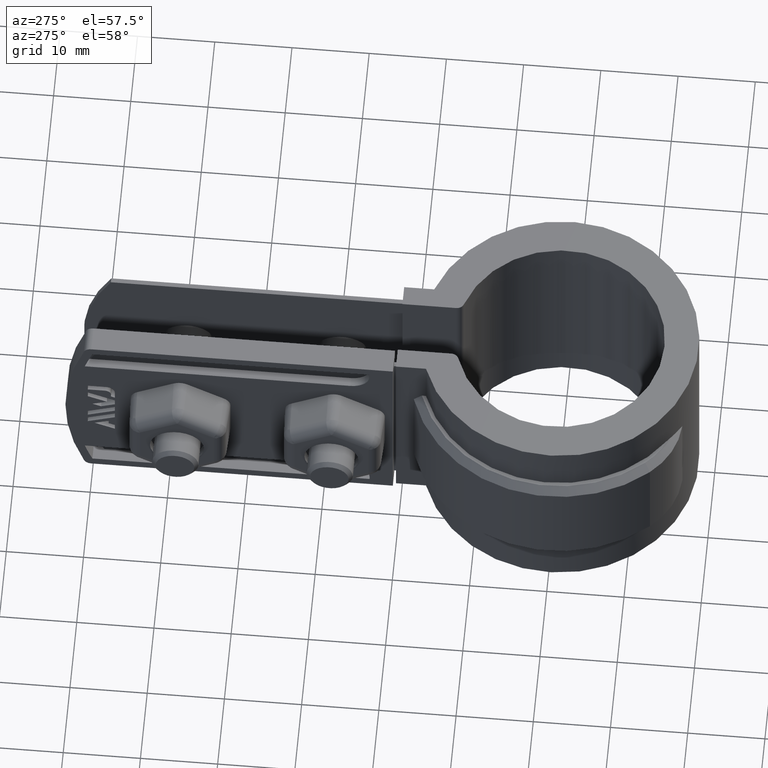
[diagram: clean part render]
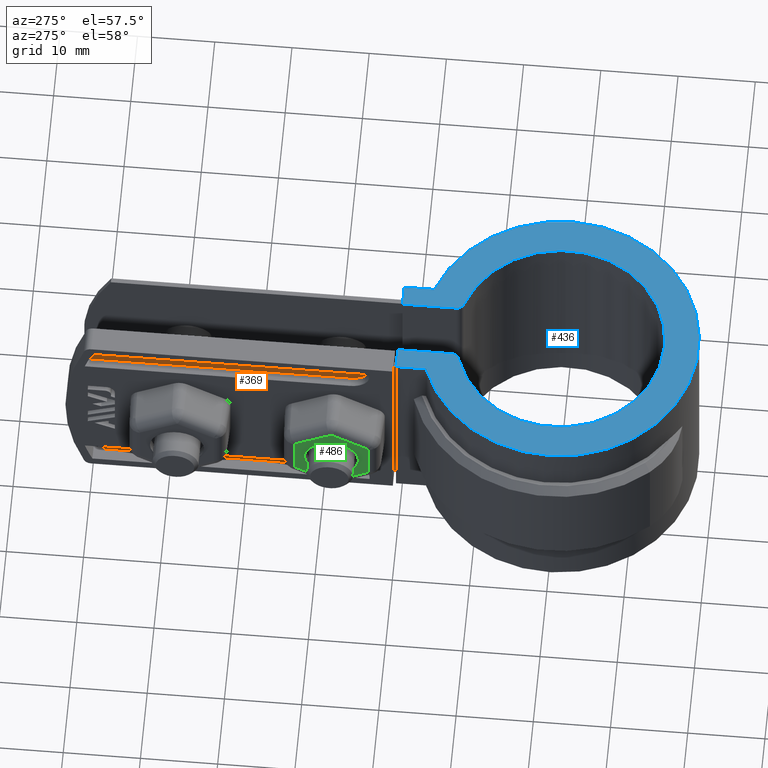
[diagram: same view with three faces highlighted in distinct colors, each labeled with its STEP entity id]
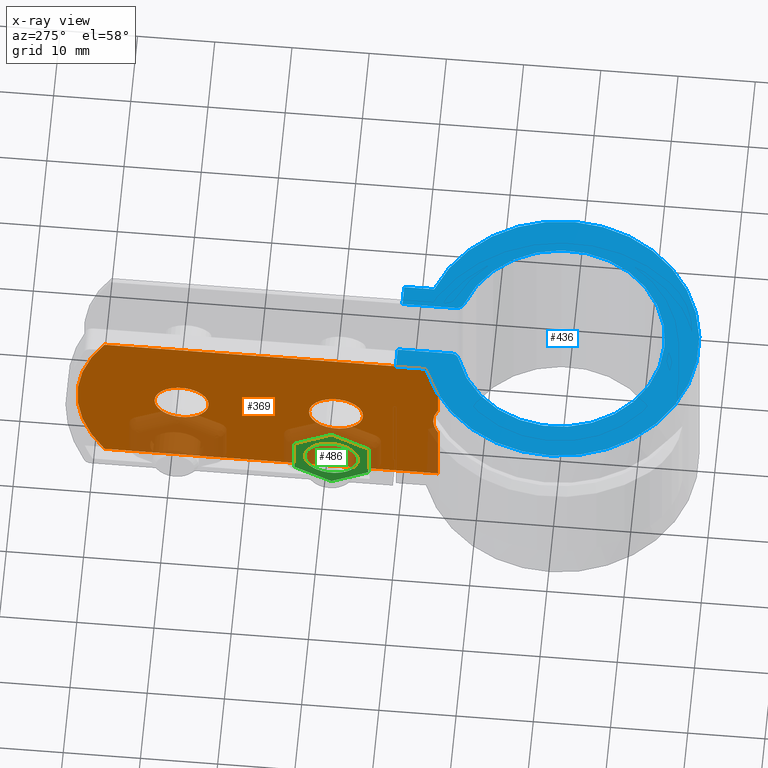
[diagram: x-ray of the same camera — body ghosted, the three highlighted faces saturated]
A machine part, auxiliary view with three faces highlighted in distinct colors.
The next image is the same camera in x-ray (body ghosted, the three faces saturated) — at least one of them is partly hidden behind the body in this view.
Their STEP definitions:

[orange] entity #369 — the highlighted planar face has unit normal (1, -0, 0).
#369 = ADVANCED_FACE( '', ( #716, #717, #718 ), #719, .F. );
#716 = FACE_OUTER_BOUND( '', #1444, .T. );
#717 = FACE_BOUND( '', #1445, .T. );
#718 = FACE_BOUND( '', #1446, .T. );
#719 = PLANE( '', #1447 );
#1444 = EDGE_LOOP( '', ( #2941, #2942, #2943, #2944, #2945, #2946 ) );
#1445 = EDGE_LOOP( '', ( #2947 ) );
#1446 = EDGE_LOOP( '', ( #2948 ) );
#1447 = AXIS2_PLACEMENT_3D( '', #2949, #2950, #2951 );
#2941 = ORIENTED_EDGE( '', *, *, #6243, .F. );
#2942 = ORIENTED_EDGE( '', *, *, #6244, .F. );
#2943 = ORIENTED_EDGE( '', *, *, #6245, .F. );
#2944 = ORIENTED_EDGE( '', *, *, #6246, .F. );
#2945 = ORIENTED_EDGE( '', *, *, #6224, .T. );
#2946 = ORIENTED_EDGE( '', *, *, #6247, .F. );
#2947 = ORIENTED_EDGE( '', *, *, #6248, .F. );
#2948 = ORIENTED_EDGE( '', *, *, #6249, .F. );
#2949 = CARTESIAN_POINT( '', ( -5.10000000000000, 62.1042845476287, 0.000000000000000 ) );
#2950 = DIRECTION( '', ( 1.00000000000000, -6.12303176911189E-017, 0.000000000000000 ) );
#2951 = DIRECTION( '', ( 0.000000000000000, 0.000000000000000, 1.00000000000000 ) );
#6224 = EDGE_CURVE( '', #7158, #7156, #7159, .T. );
#6243 = EDGE_CURVE( '', #7192, #7193, #7194, .T. );
#6244 = EDGE_CURVE( '', #7195, #7192, #7196, .T. );
#6245 = EDGE_CURVE( '', #7197, #7195, #7198, .F. );
#6246 = EDGE_CURVE( '', #7158, #7197, #7199, .T. );
#6247 = EDGE_CURVE( '', #7193, #7156, #7200, .T. );
#6248 = EDGE_CURVE( '', #7201, #7201, #7202, .F. );
#6249 = EDGE_CURVE( '', #7203, #7203, #7204, .F. );
#7156 = VERTEX_POINT( '', #8782 );
#7158 = VERTEX_POINT( '', #8784 );
#7159 = LINE( '', #8785, #8786 );
#7192 = VERTEX_POINT( '', #8939 );
#7193 = VERTEX_POINT( '', #8940 );
#7194 = B_SPLINE_CURVE_WITH_KNOTS( '', 3, ( #8941, #8942, #8943, #8944, #8945, #8946, #8947, #8948, #8949, #8950 ), .UNSPECIFIED., .F., .F., ( 4, 2, 2, 2, 4 ), ( 1.73472347597681E-018, 0.00136972833482958, 0.00273945666965915, 0.00410918500448873, 0.00547891333931831 ), .UNSPECIFIED. );
#7195 = VERTEX_POINT( '', #8951 );
#7196 = LINE( '', #8952, #8953 );
#7197 = VERTEX_POINT( '', #8954 );
#7198 = LINE( '', #8955, #8956 );
#7199 = CIRCLE( '', #8957, 24.0000000000000 );
#7200 = LINE( '', #8958, #8959 );
#7201 = VERTEX_POINT( '', #8960 );
#7202 = CIRCLE( '', #8961, 3.50000000000000 );
#7203 = VERTEX_POINT( '', #8962 );
#7204 = CIRCLE( '', #8963, 3.50000000000000 );
#8782 = CARTESIAN_POINT( '', ( -5.10000000000000, 15.3831076184235, -25.0000000000000 ) );
#8784 = CARTESIAN_POINT( '', ( -5.10000000000000, 58.5920857961767, -25.0000000000000 ) );
#8785 = CARTESIAN_POINT( '', ( -5.10000000000000, 62.1042845476287, -25.0000000000000 ) );
#8786 = VECTOR( '', #12211, 1000.00000000000 );
#8939 = CARTESIAN_POINT( '', ( -5.10000000000000, 15.3831076184236, -9.84439986604455 ) );
#8940 = CARTESIAN_POINT( '', ( -5.10000000000000, 15.3831076184235, -15.1556001339555 ) );
#8941 = CARTESIAN_POINT( '', ( -5.10000000000000, 15.3831076184236, -9.84439986604455 ) );
#8942 = CARTESIAN_POINT( '', ( -5.10000000000001, 15.5894396324821, -10.2588273996214 ) );
#8943 = CARTESIAN_POINT( '', ( -5.10000000000000, 15.7457538054947, -10.6884978307923 ) );
#8944 = CARTESIAN_POINT( '', ( -5.10000000000000, 15.9602605933104, -11.5777411605792 ) );
#8945 = CARTESIAN_POINT( '', ( -5.09999999999998, 16.0173587787112, -12.0419649333648 ) );
#8946 = CARTESIAN_POINT( '', ( -5.09999999999998, 16.0176066976480, -12.9549874060008 ) );
#8947 = CARTESIAN_POINT( '', ( -5.10000000000000, 15.9625813983814, -13.4102325084198 ) );
#8948 = CARTESIAN_POINT( '', ( -5.10000000000000, 15.7468416891247, -14.3093600833802 ) );
#8949 = CARTESIAN_POINT( '', ( -5.09999999999942, 15.5894183484999, -14.7412153502558 ) );
#8950 = CARTESIAN_POINT( '', ( -5.09999999999942, 15.3831076184236, -15.1556001339555 ) );
#8951 = CARTESIAN_POINT( '', ( -5.10000000000000, 15.3831076184235, 0.000000000000000 ) );
#8952 = CARTESIAN_POINT( '', ( -5.10000000000000, 15.3831076184236, 0.000000000000000 ) );
#8953 = VECTOR( '', #12234, 1000.00000000000 );
#8954 = CARTESIAN_POINT( '', ( -5.10000000000000, 58.5920857961767, -7.03073109483645E-031 ) );
#8955 = CARTESIAN_POINT( '', ( -5.10000000000000, 15.3831076184235, 0.000000000000000 ) );
#8956 = VECTOR( '', #12235, 1000.00000000000 );
#8957 = AXIS2_PLACEMENT_3D( '', #12236, #12237, #12238 );
#8958 = CARTESIAN_POINT( '', ( -5.10000000000000, 15.3831076184236, 0.000000000000000 ) );
#8959 = VECTOR( '', #12239, 1000.00000000000 );
#8960 = CARTESIAN_POINT( '', ( -5.10000000000000, 32.1042845476287, -12.5000000000000 ) );
#8961 = AXIS2_PLACEMENT_3D( '', #12240, #12241, #12242 );
#8962 = CARTESIAN_POINT( '', ( -5.10000000000000, 52.1042845476287, -12.5000000000000 ) );
#8963 = AXIS2_PLACEMENT_3D( '', #12243, #12244, #12245 );
#12211 = DIRECTION( '', ( -6.12303176911189E-017, -1.00000000000000, 0.000000000000000 ) );
#12234 = DIRECTION( '', ( 0.000000000000000, 0.000000000000000, -1.00000000000000 ) );
#12235 = DIRECTION( '', ( 6.12303176911189E-017, 1.00000000000000, 0.000000000000000 ) );
#12236 = CARTESIAN_POINT( '', ( -5.09999999999999, 38.1042845476288, -12.5000000000000 ) );
#12237 = DIRECTION( '', ( 1.00000000000000, -6.12303176911189E-017, 0.000000000000000 ) );
#12238 = DIRECTION( '', ( 6.12303176911189E-017, 1.00000000000000, 0.000000000000000 ) );
#12239 = DIRECTION( '', ( 0.000000000000000, 0.000000000000000, -1.00000000000000 ) );
#12240 = CARTESIAN_POINT( '', ( -5.10000000000000, 28.6042845476287, -12.5000000000000 ) );
#12241 = DIRECTION( '', ( 1.00000000000000, -6.12303176911189E-017, 0.000000000000000 ) );
#12242 = DIRECTION( '', ( 6.12303176911189E-017, 1.00000000000000, 0.000000000000000 ) );
#12243 = CARTESIAN_POINT( '', ( -5.10000000000000, 48.6042845476287, -12.5000000000000 ) );
#12244 = DIRECTION( '', ( 1.00000000000000, -6.12303176911189E-017, 0.000000000000000 ) );
#12245 = DIRECTION( '', ( 6.12303176911189E-017, 1.00000000000000, 0.000000000000000 ) );

[blue] entity #436 — the highlighted planar face has unit normal (0, 0, -1).
#436 = ADVANCED_FACE( '', ( #861 ), #862, .F. );
#861 = FACE_OUTER_BOUND( '', #1877, .T. );
#862 = PLANE( '', #1878 );
#1877 = EDGE_LOOP( '', ( #4073, #4074, #4075, #4076, #4077, #4078, #4079, #4080, #4081, #4082 ) );
#1878 = AXIS2_PLACEMENT_3D( '', #4083, #4084, #4085 );
#4073 = ORIENTED_EDGE( '', *, *, #6468, .F. );
#4074 = ORIENTED_EDGE( '', *, *, #6350, .T. );
#4075 = ORIENTED_EDGE( '', *, *, #6361, .T. );
#4076 = ORIENTED_EDGE( '', *, *, #6469, .F. );
#4077 = ORIENTED_EDGE( '', *, *, #6470, .T. );
#4078 = ORIENTED_EDGE( '', *, *, #6471, .T. );
#4079 = ORIENTED_EDGE( '', *, *, #6340, .F. );
#4080 = ORIENTED_EDGE( '', *, *, #6445, .F. );
#4081 = ORIENTED_EDGE( '', *, *, #6472, .F. );
#4082 = ORIENTED_EDGE( '', *, *, #6473, .F. );
#4083 = CARTESIAN_POINT( '', ( -6.50000000000000, 15.3831076184235, 1.50000000000000 ) );
#4084 = DIRECTION( '', ( 0.000000000000000, 0.000000000000000, -1.00000000000000 ) );
#4085 = DIRECTION( '', ( 0.000000000000000, -1.00000000000000, 0.000000000000000 ) );
#6340 = EDGE_CURVE( '', #7346, #7347, #7348, .T. );
#6350 = EDGE_CURVE( '', #7367, #7365, #7368, .F. );
#6361 = EDGE_CURVE( '', #7365, #7384, #7386, .F. );
#6445 = EDGE_CURVE( '', #7541, #7346, #7543, .T. );
#6468 = EDGE_CURVE( '', #7367, #7577, #7578, .T. );
#6469 = EDGE_CURVE( '', #7579, #7384, #7580, .F. );
#6470 = EDGE_CURVE( '', #7579, #7581, #7582, .F. );
#6471 = EDGE_CURVE( '', #7581, #7347, #7583, .F. );
#6472 = EDGE_CURVE( '', #7584, #7541, #7585, .T. );
#6473 = EDGE_CURVE( '', #7577, #7584, #7586, .T. );
#7346 = VERTEX_POINT( '', #9608 );
#7347 = VERTEX_POINT( '', #9609 );
#7348 = LINE( '', #9610, #9611 );
#7365 = VERTEX_POINT( '', #9636 );
#7367 = VERTEX_POINT( '', #9639 );
#7368 = LINE( '', #9640, #9641 );
#7384 = VERTEX_POINT( '', #9662 );
#7386 = CIRCLE( '', #9665, 1.00000000000000 );
#7541 = VERTEX_POINT( '', #10438 );
#7543 = LINE( '', #10441, #10442 );
#7577 = VERTEX_POINT( '', #10544 );
#7578 = LINE( '', #10545, #10546 );
#7579 = VERTEX_POINT( '', #10547 );
#7580 = CIRCLE( '', #10548, 13.5000000000000 );
#7581 = VERTEX_POINT( '', #10549 );
#7582 = CIRCLE( '', #10550, 1.00000000000000 );
#7583 = LINE( '', #10551, #10552 );
#7584 = VERTEX_POINT( '', #10553 );
#7585 = CIRCLE( '', #10554, 17.9350000000000 );
#7586 = LINE( '', #10555, #10556 );
#9608 = CARTESIAN_POINT( '', ( -6.09999999999997, 20.7500000000000, 1.50000000000000 ) );
#9609 = CARTESIAN_POINT( '', ( -3.49999999999999, 20.7500000000000, 1.50000000000000 ) );
#9610 = CARTESIAN_POINT( '', ( -6.09999999999997, 20.7500000000000, 1.50000000000000 ) );
#9611 = VECTOR( '', #12340, 1000.00000000000 );
#9636 = CARTESIAN_POINT( '', ( 3.50000000000000, 13.7840487520902, 1.50000000000000 ) );
#9639 = CARTESIAN_POINT( '', ( 3.50000000000000, 20.7500000000000, 1.50000000000000 ) );
#9640 = CARTESIAN_POINT( '', ( 3.50000000000000, 15.3831076184235, 1.50000000000000 ) );
#9641 = VECTOR( '', #12350, 1000.00000000000 );
#9662 = CARTESIAN_POINT( '', ( 4.18965517241380, 12.8334247002219, 1.50000000000000 ) );
#9665 = AXIS2_PLACEMENT_3D( '', #12369, #12370, #12371 );
#10438 = CARTESIAN_POINT( '', ( -6.09999999999997, 16.8657708095420, 1.50000000000000 ) );
#10441 = CARTESIAN_POINT( '', ( -6.09999999999997, 16.8657708095420, 1.50000000000000 ) );
#10442 = VECTOR( '', #12450, 1000.00000000000 );
#10544 = CARTESIAN_POINT( '', ( 6.10000000000003, 20.7500000000000, 1.50000000000000 ) );
#10545 = CARTESIAN_POINT( '', ( 5.09999999999999, 20.7500000000000, 1.50000000000000 ) );
#10546 = VECTOR( '', #12477, 1000.00000000000 );
#10547 = CARTESIAN_POINT( '', ( -4.18965517241378, 12.8334247002219, 1.50000000000000 ) );
#10548 = AXIS2_PLACEMENT_3D( '', #12478, #12479, #12480 );
#10549 = CARTESIAN_POINT( '', ( -3.49999999999999, 13.7840487520902, 1.50000000000000 ) );
#10550 = AXIS2_PLACEMENT_3D( '', #12481, #12482, #12483 );
#10551 = CARTESIAN_POINT( '', ( -3.49999999999999, 15.3831076184235, 1.50000000000000 ) );
#10552 = VECTOR( '', #12484, 1000.00000000000 );
#10553 = CARTESIAN_POINT( '', ( 6.10000000000003, 16.8657708095420, 1.50000000000000 ) );
#10554 = AXIS2_PLACEMENT_3D( '', #12485, #12486, #12487 );
#10555 = CARTESIAN_POINT( '', ( 6.10000000000003, 20.7500000000000, 1.50000000000000 ) );
#10556 = VECTOR( '', #12488, 1000.00000000000 );
#12340 = DIRECTION( '', ( 1.00000000000000, 0.000000000000000, 0.000000000000000 ) );
#12350 = DIRECTION( '', ( 6.07153216591882E-017, 1.00000000000000, 0.000000000000000 ) );
#12369 = CARTESIAN_POINT( '', ( 4.50000000000000, 13.7840487520902, 1.50000000000000 ) );
#12370 = DIRECTION( '', ( 0.000000000000000, 0.000000000000000, -1.00000000000000 ) );
#12371 = DIRECTION( '', ( -1.00000000000000, 0.000000000000000, 0.000000000000000 ) );
#12450 = DIRECTION( '', ( 6.07153216591882E-017, 1.00000000000000, 0.000000000000000 ) );
#12477 = DIRECTION( '', ( 1.00000000000000, 0.000000000000000, 0.000000000000000 ) );
#12478 = CARTESIAN_POINT( '', ( 0.000000000000000, 0.000000000000000, 1.50000000000000 ) );
#12479 = DIRECTION( '', ( 0.000000000000000, 0.000000000000000, -1.00000000000000 ) );
#12480 = DIRECTION( '', ( -1.00000000000000, 0.000000000000000, 0.000000000000000 ) );
#12481 = CARTESIAN_POINT( '', ( -4.49999999999999, 13.7840487520902, 1.50000000000000 ) );
#12482 = DIRECTION( '', ( 0.000000000000000, 0.000000000000000, -1.00000000000000 ) );
#12483 = DIRECTION( '', ( -1.00000000000000, 0.000000000000000, 0.000000000000000 ) );
#12484 = DIRECTION( '', ( -6.07153216591882E-017, -1.00000000000000, 0.000000000000000 ) );
#12485 = CARTESIAN_POINT( '', ( 0.000000000000000, 0.000000000000000, 1.50000000000000 ) );
#12486 = DIRECTION( '', ( 0.000000000000000, 0.000000000000000, -1.00000000000000 ) );
#12487 = DIRECTION( '', ( -1.00000000000000, 0.000000000000000, 0.000000000000000 ) );
#12488 = DIRECTION( '', ( -6.07153216591882E-017, -1.00000000000000, 0.000000000000000 ) );

[green] entity #486 — the highlighted planar face has unit normal (-1, 0, -0).
#486 = ADVANCED_FACE( '', ( #971, #972 ), #973, .T. );
#971 = FACE_OUTER_BOUND( '', #2083, .T. );
#972 = FACE_BOUND( '', #2084, .T. );
#973 = PLANE( '', #2085 );
#2083 = EDGE_LOOP( '', ( #4592, #4593, #4594, #4595, #4596, #4597, #4598, #4599, #4600, #4601, #4602, #4603 ) );
#2084 = EDGE_LOOP( '', ( #4604 ) );
#2085 = AXIS2_PLACEMENT_3D( '', #4605, #4606, #4607 );
#4592 = ORIENTED_EDGE( '', *, *, #6668, .T. );
#4593 = ORIENTED_EDGE( '', *, *, #6669, .T. );
#4594 = ORIENTED_EDGE( '', *, *, #6670, .T. );
#4595 = ORIENTED_EDGE( '', *, *, #6671, .T. );
#4596 = ORIENTED_EDGE( '', *, *, #6672, .T. );
#4597 = ORIENTED_EDGE( '', *, *, #6673, .T. );
#4598 = ORIENTED_EDGE( '', *, *, #6674, .T. );
#4599 = ORIENTED_EDGE( '', *, *, #6675, .T. );
#4600 = ORIENTED_EDGE( '', *, *, #6676, .T. );
#4601 = ORIENTED_EDGE( '', *, *, #6677, .T. );
#4602 = ORIENTED_EDGE( '', *, *, #6678, .T. );
#4603 = ORIENTED_EDGE( '', *, *, #6679, .T. );
#4604 = ORIENTED_EDGE( '', *, *, #6680, .T. );
#4605 = CARTESIAN_POINT( '', ( -11.8999999999998, 33.3042845476542, -15.2135462651974 ) );
#4606 = DIRECTION( '', ( -1.00000000000000, 6.67688395442217E-016, -3.06315436100244E-016 ) );
#4607 = DIRECTION( '', ( -3.06315436100244E-016, 0.000000000000000, 1.00000000000000 ) );
#6668 = EDGE_CURVE( '', #7927, #7928, #7929, .T. );
#6669 = EDGE_CURVE( '', #7928, #7930, #7931, .T. );
#6670 = EDGE_CURVE( '', #7930, #7932, #7933, .T. );
#6671 = EDGE_CURVE( '', #7932, #7934, #7935, .T. );
#6672 = EDGE_CURVE( '', #7934, #7936, #7937, .T. );
#6673 = EDGE_CURVE( '', #7936, #7938, #7939, .T. );
#6674 = EDGE_CURVE( '', #7938, #7940, #7941, .T. );
#6675 = EDGE_CURVE( '', #7940, #7942, #7943, .T. );
#6676 = EDGE_CURVE( '', #7942, #7944, #7945, .T. );
#6677 = EDGE_CURVE( '', #7944, #7946, #7947, .T. );
#6678 = EDGE_CURVE( '', #7946, #7948, #7949, .T. );
#6679 = EDGE_CURVE( '', #7948, #7927, #7950, .T. );
#6680 = EDGE_CURVE( '', #7951, #7951, #7952, .T. );
#7927 = VERTEX_POINT( '', #11102 );
#7928 = VERTEX_POINT( '', #11103 );
#7929 = CIRCLE( '', #11104, 0.0765531499276716 );
#7930 = VERTEX_POINT( '', #11105 );
#7931 = LINE( '', #11106, #11107 );
#7932 = VERTEX_POINT( '', #11108 );
#7933 = CIRCLE( '', #11109, 0.0765531499276797 );
#7934 = VERTEX_POINT( '', #11110 );
#7935 = LINE( '', #11111, #11112 );
#7936 = VERTEX_POINT( '', #11113 );
#7937 = CIRCLE( '', #11114, 0.0765531499276762 );
#7938 = VERTEX_POINT( '', #11115 );
#7939 = LINE( '', #11116, #11117 );
#7940 = VERTEX_POINT( '', #11118 );
#7941 = CIRCLE( '', #11119, 0.0765531499276765 );
#7942 = VERTEX_POINT( '', #11120 );
#7943 = LINE( '', #11121, #11122 );
#7944 = VERTEX_POINT( '', #11123 );
#7945 = CIRCLE( '', #11124, 0.0765531499276765 );
#7946 = VERTEX_POINT( '', #11125 );
#7947 = LINE( '', #11126, #11127 );
#7948 = VERTEX_POINT( '', #11128 );
#7949 = CIRCLE( '', #11129, 0.0765531499276832 );
#7950 = LINE( '', #11130, #11131 );
#7951 = VERTEX_POINT( '', #11132 );
#7952 = CIRCLE( '', #11133, 3.49999999999991 );
#11102 = CARTESIAN_POINT( '', ( -11.8999999999998, 28.6425611226182, -17.9933895029657 ) );
#11103 = CARTESIAN_POINT( '', ( -11.8999999999998, 28.5660079726905, -17.9933895029657 ) );
#11104 = AXIS2_PLACEMENT_3D( '', #12766, #12767, #12768 );
#11105 = CARTESIAN_POINT( '', ( -11.8999999999998, 23.8660079726906, -15.2798432377745 ) );
#11106 = CARTESIAN_POINT( '', ( -11.8999999999998, 30.9160079726904, -19.3501626355613 ) );
#11107 = VECTOR( '', #12769, 1000.00000000000 );
#11108 = CARTESIAN_POINT( '', ( -11.8999999999998, 23.8277313977268, -15.2135462651974 ) );
#11109 = AXIS2_PLACEMENT_3D( '', #12770, #12771, #12772 );
#11110 = CARTESIAN_POINT( '', ( -11.8999999999998, 23.8277313977268, -9.78645373481489 ) );
#11111 = CARTESIAN_POINT( '', ( -11.8999999999998, 23.8277313977268, -15.2135462651974 ) );
#11112 = VECTOR( '', #12773, 1000.00000000000 );
#11113 = CARTESIAN_POINT( '', ( -11.8999999999998, 23.8660079726906, -9.72015676223780 ) );
#11114 = AXIS2_PLACEMENT_3D( '', #12774, #12775, #12776 );
#11115 = CARTESIAN_POINT( '', ( -11.8999999999998, 28.5660079726905, -7.00661049704657 ) );
#11116 = CARTESIAN_POINT( '', ( -11.8999999999998, 28.5660079726905, -7.00661049704657 ) );
#11117 = VECTOR( '', #12777, 1000.00000000000 );
#11118 = CARTESIAN_POINT( '', ( -11.8999999999998, 28.6425611226182, -7.00661049704657 ) );
#11119 = AXIS2_PLACEMENT_3D( '', #12778, #12779, #12780 );
#11120 = CARTESIAN_POINT( '', ( -11.8999999999998, 33.3425611226181, -9.72015676223781 ) );
#11121 = CARTESIAN_POINT( '', ( -11.8999999999998, 35.6925611226180, -11.0769298948334 ) );
#11122 = VECTOR( '', #12781, 1000.00000000000 );
#11123 = CARTESIAN_POINT( '', ( -11.8999999999998, 33.3808376975819, -9.78645373481490 ) );
#11124 = AXIS2_PLACEMENT_3D( '', #12782, #12783, #12784 );
#11125 = CARTESIAN_POINT( '', ( -11.8999999999998, 33.3808376975819, -15.2135462651974 ) );
#11126 = CARTESIAN_POINT( '', ( -11.8999999999998, 33.3808376975819, -15.2135462651974 ) );
#11127 = VECTOR( '', #12785, 1000.00000000000 );
#11128 = CARTESIAN_POINT( '', ( -11.8999999999998, 33.3425611226181, -15.2798432377745 ) );
#11129 = AXIS2_PLACEMENT_3D( '', #12786, #12787, #12788 );
#11130 = CARTESIAN_POINT( '', ( -11.8999999999998, 33.3425611226181, -15.2798432377745 ) );
#11131 = VECTOR( '', #12789, 1000.00000000000 );
#11132 = CARTESIAN_POINT( '', ( -11.8999999999998, 25.1042845476544, -12.5000000000061 ) );
#11133 = AXIS2_PLACEMENT_3D( '', #12790, #12791, #12792 );
#12766 = CARTESIAN_POINT( '', ( -11.8999999999998, 28.6042845476543, -17.9270925303886 ) );
#12767 = DIRECTION( '', ( -1.00000000000000, 6.67688395442217E-016, -3.06315436100244E-016 ) );
#12768 = DIRECTION( '', ( -6.67688395442217E-016, -1.00000000000000, 1.25333771139399E-016 ) );
#12769 = DIRECTION( '', ( -7.31392830315152E-016, -0.866025403784433, 0.500000000000009 ) );
#12770 = CARTESIAN_POINT( '', ( -11.8999999999998, 23.9042845476545, -15.2135462651974 ) );
#12771 = DIRECTION( '', ( -1.00000000000000, 6.67688395442217E-016, -3.06315436100244E-016 ) );
#12772 = DIRECTION( '', ( -6.67688395442217E-016, -1.00000000000000, 1.25333771139399E-016 ) );
#12773 = DIRECTION( '', ( -3.06315436100246E-016, 6.95144790259496E-017, 1.00000000000000 ) );
#12774 = CARTESIAN_POINT( '', ( -11.8999999999998, 23.9042845476545, -9.78645373481489 ) );
#12775 = DIRECTION( '', ( -1.00000000000000, 6.67688395442217E-016, -3.06315436100244E-016 ) );
#12776 = DIRECTION( '', ( -6.67688395442217E-016, -1.00000000000000, 1.25333771139399E-016 ) );
#12777 = DIRECTION( '', ( 4.25077394214900E-016, 0.866025403784433, 0.500000000000009 ) );
#12778 = CARTESIAN_POINT( '', ( -11.8999999999998, 28.6042845476543, -7.07290746962366 ) );
#12779 = DIRECTION( '', ( -1.00000000000000, 6.67688395442217E-016, -3.06315436100244E-016 ) );
#12780 = DIRECTION( '', ( -6.67688395442217E-016, -1.00000000000000, 1.25333771139399E-016 ) );
#12781 = DIRECTION( '', ( 7.31392830315152E-016, 0.866025403784433, -0.500000000000009 ) );
#12782 = CARTESIAN_POINT( '', ( -11.8999999999998, 33.3042845476542, -9.78645373481490 ) );
#12783 = DIRECTION( '', ( -1.00000000000000, 6.67688395442217E-016, -3.06315436100244E-016 ) );
#12784 = DIRECTION( '', ( -6.67688395442217E-016, -1.00000000000000, 1.25333771139399E-016 ) );
#12785 = DIRECTION( '', ( 3.06315436100247E-016, 4.29469600290971E-016, -1.00000000000000 ) );
#12786 = CARTESIAN_POINT( '', ( -11.8999999999998, 33.3042845476542, -15.2135462651974 ) );
#12787 = DIRECTION( '', ( -1.00000000000000, 6.67688395442217E-016, -3.06315436100244E-016 ) );
#12788 = DIRECTION( '', ( -6.67688395442217E-016, -1.00000000000000, 1.25333771139399E-016 ) );
#12789 = DIRECTION( '', ( -4.25077394214900E-016, -0.866025403784433, -0.500000000000009 ) );
#12790 = CARTESIAN_POINT( '', ( -11.8999999999998, 28.6042845476543, -12.5000000000061 ) );
#12791 = DIRECTION( '', ( 1.00000000000000, -6.67688395442217E-016, 3.06315436100244E-016 ) );
#12792 = DIRECTION( '', ( -6.67688395442217E-016, -1.00000000000000, 1.25333771139399E-016 ) );